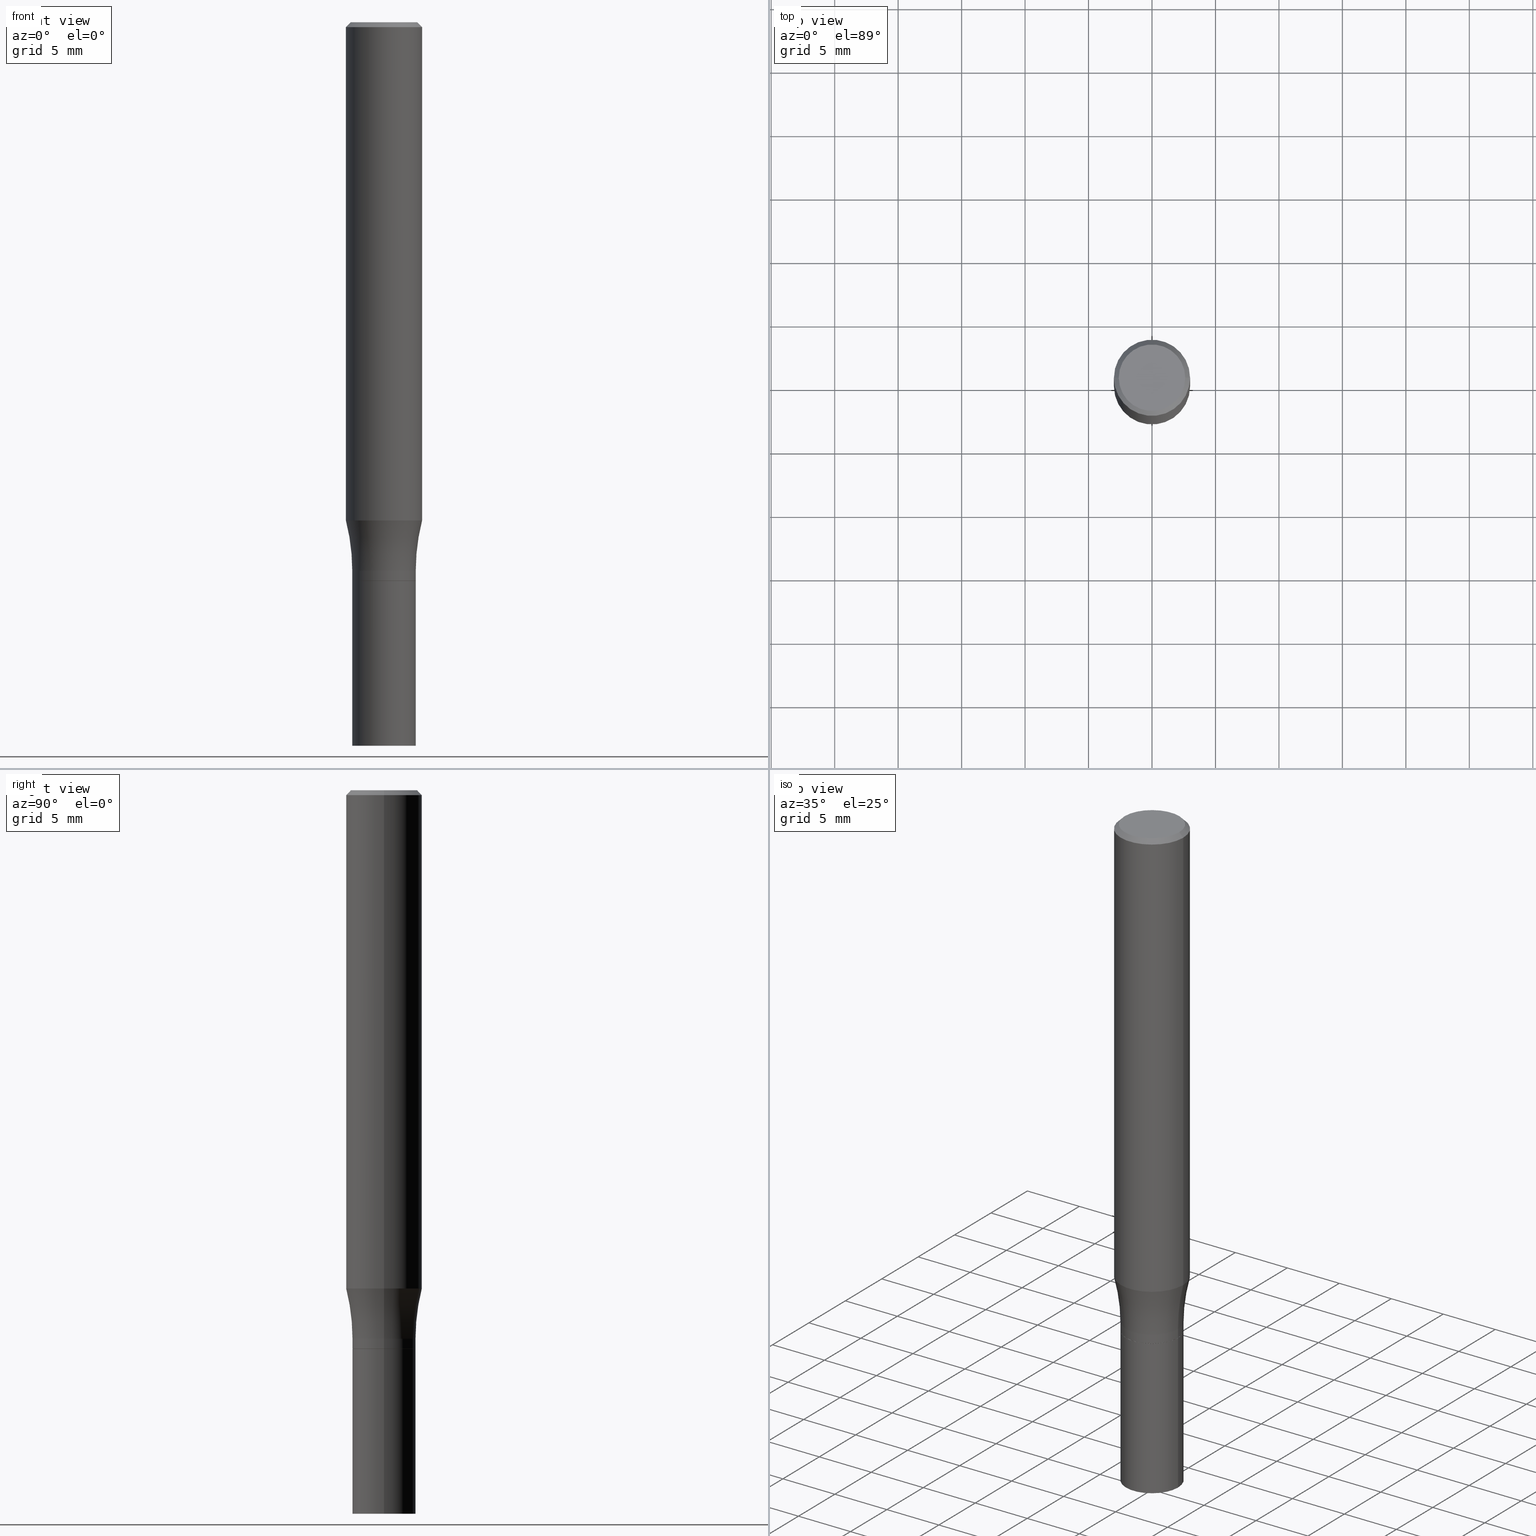
[diagram: canonical four-view strip — front | top / right | iso, engineering-drawing reading convention]
A machine part, canonical four-view strip (front | top / right | iso — engineering-drawing reading convention). The complete STEP part file that produces these views, byte-faithful:
ISO-10303-21;
HEADER;
FILE_DESCRIPTION (( 'STEP AP203' ),
    '1' );
FILE_NAME ('44514.STEP',
    '2024-03-04T15:28:48',
    ( '' ),
    ( '' ),
    'SwSTEP 2.0',
    'SolidWorks 2023',
    '' );
FILE_SCHEMA (( 'CONFIG_CONTROL_DESIGN' ));
ENDSEC;

DATA;
#1 = CC_DESIGN_PERSON_AND_ORGANIZATION_ASSIGNMENT ( #320, #254, ( #123 ) ) ;
#2 = DIRECTION ( 'NONE',  ( 0.000000000000000000, 0.000000000000000000, 1.000000000000000000 ) ) ;
#3 = SECURITY_CLASSIFICATION ( '', '', #408 ) ;
#4 =( NAMED_UNIT ( * ) PLANE_ANGLE_UNIT ( ) SI_UNIT ( $, .RADIAN. ) );
#5 = APPROVAL_ROLE ( '' ) ;
#6 = CARTESIAN_POINT ( 'NONE',  ( 4.236285612954512392E-29, -6.048293123277981078E-15, -1.732299999999999951 ) ) ;
#7 = ADVANCED_FACE ( 'NONE', ( #91 ), #183, .F. ) ;
#8 = VECTOR ( 'NONE', #30, 39.37007874015748143 ) ;
#9 = CC_DESIGN_PERSON_AND_ORGANIZATION_ASSIGNMENT ( #10, #74, ( #436 ) ) ;
#10 = PERSON_AND_ORGANIZATION ( #270, #120 ) ;
#11 = FACE_OUTER_BOUND ( 'NONE', #195, .T. ) ;
#12 = EDGE_LOOP ( 'NONE', ( #56, #40, #379, #128 ) ) ;
#13 = EDGE_LOOP ( 'NONE', ( #297, #447, #370, #80 ) ) ;
#14 = CARTESIAN_POINT ( 'NONE',  ( 0.000000000000000000, 0.000000000000000000, 0.000000000000000000 ) ) ;
#15 = EDGE_CURVE ( 'NONE', #75, #240, #97, .T. ) ;
#16 = VERTEX_POINT ( 'NONE', #301 ) ;
#17 = CARTESIAN_POINT ( 'NONE',  ( -0.1180999999999999966, 7.723156721521009862E-16, -0.01499999999999999944 ) ) ;
#18 = ORIENTED_EDGE ( 'NONE', *, *, #454, .F. ) ;
#19 = AXIS2_PLACEMENT_3D ( 'NONE', #172, #342, #430 ) ;
#20 = DIRECTION ( 'NONE',  ( 1.000000000000000000, -6.982962677686267499E-15, 4.876176775795936353E-29 ) ) ;
#21 = AXIS2_PLACEMENT_3D ( 'NONE', #6, #402, #150 ) ;
#22 = VERTEX_POINT ( 'NONE', #384 ) ;
#23 = CC_DESIGN_SECURITY_CLASSIFICATION ( #3, ( #436 ) ) ;
#24 = DIRECTION ( 'NONE',  ( 1.000000000000000000, -6.982962677686265133E-15, 0.000000000000000000 ) ) ;
#25 = CARTESIAN_POINT ( 'NONE',  ( 3.779747038470435747E-29, -5.396477034174070739E-15, -1.545612452267071113 ) ) ;
#26 = DIRECTION ( 'NONE',  ( -1.000000000000000000, 6.982962677686265922E-15, -4.876176775795935793E-29 ) ) ;
#27 = DIRECTION ( 'NONE',  ( 1.000000000000000000, -6.982962677686266711E-15, 4.876176775795935793E-29 ) ) ;
#28 = DIRECTION ( 'NONE',  ( 1.000000000000000000, -6.982962677686265922E-15, 4.876176775795935793E-29 ) ) ;
#29 = AXIS2_PLACEMENT_3D ( 'NONE', #259, #412, #329 ) ;
#30 = DIRECTION ( 'NONE',  ( -2.445468806185136877E-29, 3.491481338843145188E-15, 1.000000000000000000 ) ) ;
#31 = EDGE_CURVE ( 'NONE', #199, #386, #163, .T. ) ;
#32 = CARTESIAN_POINT ( 'NONE',  ( 3.779747038470435747E-29, -5.396477034174070739E-15, -1.545612452267071113 ) ) ;
#33 = DESIGN_CONTEXT ( 'detailed design', #393, 'design' ) ;
#34 = AXIS2_PLACEMENT_3D ( 'NONE', #369, #89, #299 ) ;
#35 = CALENDAR_DATE ( 2024, 4, 3 ) ;
#36 = EDGE_CURVE ( 'NONE', #199, #132, #378, .T. ) ;
#37 = EDGE_LOOP ( 'NONE', ( #372, #420, #333, #157 ) ) ;
#38 = CARTESIAN_POINT ( 'NONE',  ( 0.09795000000000000928, -6.732274317557352209E-15, -1.732300000000000173 ) ) ;
#39 = ADVANCED_FACE ( 'NONE', ( #127 ), #168, .T. ) ;
#40 = ORIENTED_EDGE ( 'NONE', *, *, #137, .T. ) ;
#41 = ORIENTED_EDGE ( 'NONE', *, *, #225, .F. ) ;
#42 = APPROVAL ( #111, 'UNSPECIFIED' ) ;
#43 = AXIS2_PLACEMENT_3D ( 'NONE', #231, #345, #455 ) ;
#44 = APPLICATION_PROTOCOL_DEFINITION ( 'international standard', 'config_control_design', 1994, #280 ) ;
#45 = AXIS2_PLACEMENT_3D ( 'NONE', #417, #449, #303 ) ;
#46 = CARTESIAN_POINT ( 'NONE',  ( 0.1031000000000000111, -7.849571885948555664E-16, -3.585672687244918133E-16 ) ) ;
#47 = DIRECTION ( 'NONE',  ( -2.445468806185136877E-29, 3.491481338843145188E-15, 1.000000000000000000 ) ) ;
#48 = DIRECTION ( 'NONE',  ( -2.438088387897960049E-29, 3.491481338843145188E-15, 1.000000000000000000 ) ) ;
#49 = LINE ( 'NONE', #124, #428 ) ;
#50 = EDGE_LOOP ( 'NONE', ( #416, #169 ) ) ;
#51 = LINE ( 'NONE', #332, #8 ) ;
#52 = AXIS2_PLACEMENT_3D ( 'NONE', #281, #100, #68 ) ;
#53 = ORIENTED_EDGE ( 'NONE', *, *, #362, .T. ) ;
#54 = DIRECTION ( 'NONE',  ( -2.445468806185136597E-29, 3.491481338843145583E-15, 1.000000000000000000 ) ) ;
#55 = ADVANCED_FACE ( 'NONE', ( #463 ), #94, .F. ) ;
#56 = ORIENTED_EDGE ( 'NONE', *, *, #404, .T. ) ;
#57 = CARTESIAN_POINT ( 'NONE',  ( -0.09795000000000000928, -5.352316513600964655E-15, -1.732300000000000173 ) ) ;
#58 = EDGE_LOOP ( 'NONE', ( #119, #295 ) ) ;
#59 = DIRECTION ( 'NONE',  ( -2.445468806185136597E-29, 3.491481338843145583E-15, 1.000000000000000000 ) ) ;
#60 = FACE_OUTER_BOUND ( 'NONE', #58, .T. ) ;
#61 = ORIENTED_EDGE ( 'NONE', *, *, #31, .F. ) ;
#62 = CIRCLE ( 'NONE', #251, 0.09845000000000000973 ) ;
#63 = LINE ( 'NONE', #278, #238 ) ;
#64 = CARTESIAN_POINT ( 'NONE',  ( 8.768650705847610599E-45, -1.251930927471537114E-30, -3.585672687244970888E-16 ) ) ;
#65 = ORIENTED_EDGE ( 'NONE', *, *, #286, .F. ) ;
#66 = LOCAL_TIME ( 10, 28, 48.00000000000000000, #153 ) ;
#67 = CARTESIAN_POINT ( 'NONE',  ( -0.1181000000000000105, 8.391509709326783943E-16, -5.809262341591044484E-30 ) ) ;
#68 = DIRECTION ( 'NONE',  ( 1.000000000000000000, -6.982962677686267499E-15, 4.876176775795936353E-29 ) ) ;
#69 = FACE_OUTER_BOUND ( 'NONE', #131, .T. ) ;
#70 = AXIS2_PLACEMENT_3D ( 'NONE', #337, #305, #20 ) ;
#71 = DIRECTION ( 'NONE',  ( -2.445468806185136877E-29, 3.491481338843145188E-15, 1.000000000000000000 ) ) ;
#72 = APPROVAL_DATE_TIME ( #140, #151 ) ;
#73 = CC_DESIGN_APPROVAL ( #151, ( #3 ) ) ;
#74 = PERSON_AND_ORGANIZATION_ROLE ( 'creator' ) ;
#75 = VERTEX_POINT ( 'NONE', #200 ) ;
#76 = AXIS2_PLACEMENT_3D ( 'NONE', #14, #83, #27 ) ;
#77 = CALENDAR_DATE ( 2024, 4, 3 ) ;
#78 = AXIS2_PLACEMENT_3D ( 'NONE', #309, #275, #388 ) ;
#79 = DIRECTION ( 'NONE',  ( -2.445468806185136597E-29, 3.491481338843145583E-15, 1.000000000000000000 ) ) ;
#80 = ORIENTED_EDGE ( 'NONE', *, *, #362, .F. ) ;
#81 = ORIENTED_EDGE ( 'NONE', *, *, #201, .F. ) ;
#82 = ADVANCED_FACE ( 'NONE', ( #375 ), #268, .T. ) ;
#83 = DIRECTION ( 'NONE',  ( -2.445468806185136597E-29, 3.491481338843145583E-15, 1.000000000000000000 ) ) ;
#84 = VECTOR ( 'NONE', #47, 39.37007874015748143 ) ;
#85 = VERTEX_POINT ( 'NONE', #424 ) ;
#86 = FACE_OUTER_BOUND ( 'NONE', #12, .T. ) ;
#87 = VERTEX_POINT ( 'NONE', #17 ) ;
#88 = FACE_OUTER_BOUND ( 'NONE', #419, .T. ) ;
#89 = DIRECTION ( 'NONE',  ( -2.445468806185136597E-29, 3.491481338843145583E-15, 1.000000000000000000 ) ) ;
#90 = EDGE_LOOP ( 'NONE', ( #458, #116, #326, #300 ) ) ;
#91 = FACE_OUTER_BOUND ( 'NONE', #37, .T. ) ;
#92 = ORIENTED_EDGE ( 'NONE', *, *, #358, .F. ) ;
#93 = AXIS2_PLACEMENT_3D ( 'NONE', #96, #306, #139 ) ;
#94 = PLANE ( 'NONE',  #283 ) ;
#95 = CARTESIAN_POINT ( 'NONE',  ( 3.668203209277705088E-31, -5.237222008264718399E-17, -0.01499999999999999944 ) ) ;
#96 = CARTESIAN_POINT ( 'NONE',  ( 4.236285612954512953E-29, -6.048293123277982656E-15, -1.732300000000000173 ) ) ;
#97 = CIRCLE ( 'NONE', #363, 0.1181000000000000383 ) ;
#98 = DIRECTION ( 'NONE',  ( -2.445468806185136597E-29, 3.491481338843145583E-15, 1.000000000000000000 ) ) ;
#99 = CONICAL_SURFACE ( 'NONE', #196, 0.1180999999999999966, 0.7853981633974600474 ) ;
#100 = DIRECTION ( 'NONE',  ( -2.445468806185136597E-29, 3.491481338843145583E-15, 1.000000000000000000 ) ) ;
#101 = EDGE_CURVE ( 'NONE', #186, #359, #216, .T. ) ;
#102 = DIRECTION ( 'NONE',  ( 1.000000000000000000, 0.000000000000000000, 0.000000000000000000 ) ) ;
#103 = DIRECTION ( 'NONE',  ( -2.445468806185136597E-29, 3.491481338843145583E-15, 1.000000000000000000 ) ) ;
#104 = COORDINATED_UNIVERSAL_TIME_OFFSET ( 5, 0, .BEHIND. ) ;
#105 = AXIS2_PLACEMENT_3D ( 'NONE', #310, #277, #28 ) ;
#106 = COORDINATED_UNIVERSAL_TIME_OFFSET ( 5, 0, .BEHIND. ) ;
#107 = CARTESIAN_POINT ( 'NONE',  ( 0.09845000000000017626, -6.626831581124290238E-15, -1.701100000000000056 ) ) ;
#108 = DIRECTION ( 'NONE',  ( -2.445468806185136877E-29, 3.491481338843145188E-15, 1.000000000000000000 ) ) ;
#109 = COORDINATED_UNIVERSAL_TIME_OFFSET ( 5, 0, .BEHIND. ) ;
#110 = ADVANCED_FACE ( 'NONE', ( #88 ), #135, .T. ) ;
#111 = APPROVAL_STATUS ( 'not_yet_approved' ) ;
#112 = CC_DESIGN_PERSON_AND_ORGANIZATION_ASSIGNMENT ( #291, #442, ( #3 ) ) ;
#113 = LINE ( 'NONE', #253, #360 ) ;
#114 = CARTESIAN_POINT ( 'NONE',  ( -0.7234500000000001485, -7.989374836496292640E-16, -1.701100000000000056 ) ) ;
#115 = AXIS2_PLACEMENT_3D ( 'NONE', #334, #160, #448 ) ;
#116 = ORIENTED_EDGE ( 'NONE', *, *, #413, .T. ) ;
#117 = FACE_OUTER_BOUND ( 'NONE', #209, .T. ) ;
#118 = LOCAL_TIME ( 10, 28, 48.00000000000000000, #348 ) ;
#119 = ORIENTED_EDGE ( 'NONE', *, *, #101, .F. ) ;
#120 = ORGANIZATION ( 'UNSPECIFIED', 'UNSPECIFIED', '' ) ;
#121 = VERTEX_POINT ( 'NONE', #122 ) ;
#122 = CARTESIAN_POINT ( 'NONE',  ( -0.09845000000000017626, -4.898577822695823688E-15, -1.701100000000000056 ) ) ;
#123 = PRODUCT ( '44514', '44514', '', ( #287 ) ) ;
#124 = CARTESIAN_POINT ( 'NONE',  ( 0.09795000000000000928, -6.732274317557352209E-15, -1.732300000000000173 ) ) ;
#125 = VECTOR ( 'NONE', #108, 39.37007874015748143 ) ;
#126 = ORIENTED_EDGE ( 'NONE', *, *, #454, .T. ) ;
#127 = FACE_OUTER_BOUND ( 'NONE', #423, .T. ) ;
#128 = ORIENTED_EDGE ( 'NONE', *, *, #450, .F. ) ;
#129 = DIRECTION ( 'NONE',  ( 1.000000000000000000, -6.982962677686269077E-15, 0.000000000000000000 ) ) ;
#130 = FACE_OUTER_BOUND ( 'NONE', #13, .T. ) ;
#131 = EDGE_LOOP ( 'NONE', ( #162, #226, #206, #227 ) ) ;
#132 = VERTEX_POINT ( 'NONE', #460 ) ;
#133 = CARTESIAN_POINT ( 'NONE',  ( 0.09845000000000000973, -6.735765798896194427E-15, -1.732299999999999951 ) ) ;
#134 = AXIS2_PLACEMENT_3D ( 'NONE', #461, #136, #392 ) ;
#135 = CYLINDRICAL_SURFACE ( 'NONE', #284, 0.09845000000000000973 ) ;
#136 = DIRECTION ( 'NONE',  ( -2.445468806185136597E-29, 3.491481338843145583E-15, 1.000000000000000000 ) ) ;
#137 = EDGE_CURVE ( 'NONE', #132, #121, #63, .T. ) ;
#138 = APPROVAL_PERSON_ORGANIZATION ( #328, #151, #459 ) ;
#139 = DIRECTION ( 'NONE',  ( 1.000000000000000000, -6.982962677686269077E-15, 0.000000000000000000 ) ) ;
#140 = DATE_AND_TIME ( #242, #118 ) ;
#141 = AXIS2_PLACEMENT_3D ( 'NONE', #349, #429, #129 ) ;
#142 = CARTESIAN_POINT ( 'NONE',  ( 7.199434520694541042E-16, 0.1031000000000000111, -5.392553603969768538E-16 ) ) ;
#143 = AXIS2_PLACEMENT_3D ( 'NONE', #155, #249, #399 ) ;
#144 = AXIS2_PLACEMENT_3D ( 'NONE', #406, #395, #322 ) ;
#145 = APPROVAL_DATE_TIME ( #441, #188 ) ;
#146 = ADVANCED_FACE ( 'NONE', ( #171 ), #223, .T. ) ;
#147 = DATE_TIME_ROLE ( 'creation_date' ) ;
#148 = CIRCLE ( 'NONE', #34, 0.09845000000000017626 ) ;
#149 = PERSON_AND_ORGANIZATION ( #270, #120 ) ;
#150 = DIRECTION ( 'NONE',  ( 1.000000000000000000, -6.982962677686265133E-15, 0.000000000000000000 ) ) ;
#151 = APPROVAL ( #308, 'UNSPECIFIED' ) ;
#152 = PERSON_AND_ORGANIZATION_ROLE ( 'design_supplier' ) ;
#153 = COORDINATED_UNIVERSAL_TIME_OFFSET ( 5, 0, .BEHIND. ) ;
#154 = CARTESIAN_POINT ( 'NONE',  ( -0.09845000000000000973, -6.242233874532123993E-15, -1.732299999999999951 ) ) ;
#155 = CARTESIAN_POINT ( 'NONE',  ( 3.668203209277705088E-31, -5.237222008264718399E-17, -0.01499999999999999944 ) ) ;
#156 = ORIENTED_EDGE ( 'NONE', *, *, #101, .T. ) ;
#157 = ORIENTED_EDGE ( 'NONE', *, *, #184, .T. ) ;
#158 = CARTESIAN_POINT ( 'NONE',  ( 0.7234500000000001485, -1.099118325467820614E-14, -1.701100000000000056 ) ) ;
#159 = PRODUCT_RELATED_PRODUCT_CATEGORY ( 'detail', '', ( #123 ) ) ;
#160 = DIRECTION ( 'NONE',  ( -2.445468806185136597E-29, 3.491481338843145583E-15, 1.000000000000000000 ) ) ;
#161 = CARTESIAN_POINT ( 'NONE',  ( 0.09845000000000000973, -8.522705948116114900E-15, -2.244099999999999984 ) ) ;
#162 = ORIENTED_EDGE ( 'NONE', *, *, #246, .T. ) ;
#163 = CIRCLE ( 'NONE', #141, 0.09795000000000000928 ) ;
#164 = CARTESIAN_POINT ( 'NONE',  ( 0.000000000000000000, 0.000000000000000000, 0.000000000000000000 ) ) ;
#165 = CARTESIAN_POINT ( 'NONE',  ( -0.09795000000000000928, -5.349667286426854243E-15, -1.732300000000000173 ) ) ;
#166 = AXIS2_PLACEMENT_3D ( 'NONE', #64, #98, #211 ) ;
#167 = ORIENTED_EDGE ( 'NONE', *, *, #176, .F. ) ;
#168 = CYLINDRICAL_SURFACE ( 'NONE', #76, 0.09844999999999991258 ) ;
#169 = ORIENTED_EDGE ( 'NONE', *, *, #272, .T. ) ;
#170 = CC_DESIGN_APPROVAL ( #188, ( #336 ) ) ;
#171 = FACE_OUTER_BOUND ( 'NONE', #217, .T. ) ;
#172 = CARTESIAN_POINT ( 'NONE',  ( 4.236285612954512953E-29, -6.048293123277982656E-15, -1.732300000000000173 ) ) ;
#173 = DIRECTION ( 'NONE',  ( 2.438088387897960049E-29, -3.491481338843145188E-15, -1.000000000000000000 ) ) ;
#174 = LINE ( 'NONE', #465, #321 ) ;
#175 = CIRCLE ( 'NONE', #391, 0.6250000000000000000 ) ;
#176 = EDGE_CURVE ( 'NONE', #75, #87, #265, .T. ) ;
#177 = CARTESIAN_POINT ( 'NONE',  ( 5.487876547960064752E-29, -7.835233272497902340E-15, -2.244099999999999984 ) ) ;
#178 = DIMENSIONAL_EXPONENTS ( 1.000000000000000000, 0.000000000000000000, 0.000000000000000000, 0.000000000000000000, 0.000000000000000000, 0.000000000000000000, 0.000000000000000000 ) ;
#179 = AXIS2_PLACEMENT_3D ( 'NONE', #32, #435, #390 ) ;
#180 = CC_DESIGN_PERSON_AND_ORGANIZATION_ASSIGNMENT ( #219, #152, ( #436 ) ) ;
#181 = AXIS2_PLACEMENT_3D ( 'NONE', #364, #2, #102 ) ;
#182 = EDGE_CURVE ( 'NONE', #197, #307, #62, .T. ) ;
#183 = TOROIDAL_SURFACE ( 'NONE', #43, 0.7234500000000001485, 0.6250000000000000000 ) ;
#184 = EDGE_CURVE ( 'NONE', #456, #121, #453, .T. ) ;
#185 = LINE ( 'NONE', #250, #84 ) ;
#186 = VERTEX_POINT ( 'NONE', #161 ) ;
#187 = DIRECTION ( 'NONE',  ( -1.000000000000000000, 7.105427357601001859E-15, 0.000000000000000000 ) ) ;
#188 = APPROVAL ( #257, 'UNSPECIFIED' ) ;
#189 = AXIS2_PLACEMENT_3D ( 'NONE', #177, #389, #239 ) ;
#190 = ORIENTED_EDGE ( 'NONE', *, *, #315, .F. ) ;
#191 = DIRECTION ( 'NONE',  ( 1.000000000000000000, -6.982962677686270655E-15, 0.000000000000000000 ) ) ;
#192 =( CONVERSION_BASED_UNIT ( 'INCH', #258 ) LENGTH_UNIT ( ) NAMED_UNIT ( #178 ) );
#193 = CYLINDRICAL_SURFACE ( 'NONE', #29, 0.09845000000000000973 ) ;
#194 = DIRECTION ( 'NONE',  ( 1.000000000000000000, -6.982962677686266711E-15, 4.876176775795935793E-29 ) ) ;
#195 = EDGE_LOOP ( 'NONE', ( #156, #267, #18, #427 ) ) ;
#196 = AXIS2_PLACEMENT_3D ( 'NONE', #95, #273, #355 ) ;
#197 = VERTEX_POINT ( 'NONE', #154 ) ;
#198 = DIRECTION ( 'NONE',  ( 1.000000000000000000, -6.982962677686265133E-15, 0.000000000000000000 ) ) ;
#199 = VERTEX_POINT ( 'NONE', #165 ) ;
#200 = CARTESIAN_POINT ( 'NONE',  ( -0.1181000000000000660, -4.557326063241392542E-15, -1.545612452267071113 ) ) ;
#201 = EDGE_CURVE ( 'NONE', #121, #456, #148, .T. ) ;
#202 = EDGE_LOOP ( 'NONE', ( #126, #274 ) ) ;
#203 = EDGE_LOOP ( 'NONE', ( #65, #61 ) ) ;
#204 = CIRCLE ( 'NONE', #229, 0.6250000000000000000 ) ;
#205 = PLANE ( 'NONE',  #105 ) ;
#206 = ORIENTED_EDGE ( 'NONE', *, *, #215, .F. ) ;
#207 = DIRECTION ( 'NONE',  ( -2.445468806185136877E-29, 3.491481338843145188E-15, 1.000000000000000000 ) ) ;
#208 = FACE_OUTER_BOUND ( 'NONE', #382, .T. ) ;
#209 = EDGE_LOOP ( 'NONE', ( #446, #269, #235, #409 ) ) ;
#210 = DIRECTION ( 'NONE',  ( -2.445468806185136877E-29, 3.491481338843145188E-15, 1.000000000000000000 ) ) ;
#211 = DIRECTION ( 'NONE',  ( 1.000000000000000000, -6.982962677686265922E-15, 4.883331232093008327E-29 ) ) ;
#212 = CLOSED_SHELL ( 'NONE', ( #262, #296, #146, #232, #282, #7, #39, #245, #407, #352, #440, #82 ) ) ;
#213 = CYLINDRICAL_SURFACE ( 'NONE', #52, 0.1181000000000000105 ) ;
#214 = CONICAL_SURFACE ( 'NONE', #93, 0.09795000000000000928, 0.7853981633969190357 ) ;
#215 = EDGE_CURVE ( 'NONE', #16, #87, #276, .T. ) ;
#216 = CIRCLE ( 'NONE', #244, 0.09845000000000000973 ) ;
#217 = EDGE_LOOP ( 'NONE', ( #330, #425, #304, #41 ) ) ;
#218 = LOCAL_TIME ( 10, 28, 48.00000000000000000, #109 ) ;
#219 = PERSON_AND_ORGANIZATION ( #270, #120 ) ;
#220 = DIRECTION ( 'NONE',  ( 1.000000000000000000, -6.982962677686265922E-15, 4.876176775795935793E-29 ) ) ;
#221 = APPLICATION_PROTOCOL_DEFINITION ( 'international standard', 'config_control_design', 1994, #393 ) ;
#222 = LINE ( 'NONE', #439, #125 ) ;
#223 = CONICAL_SURFACE ( 'NONE', #78, 0.09795000000000000928, 0.7853981633969190357 ) ;
#224 = DATE_AND_TIME ( #77, #66 ) ;
#225 = EDGE_CURVE ( 'NONE', #386, #85, #49, .T. ) ;
#226 = ORIENTED_EDGE ( 'NONE', *, *, #176, .T. ) ;
#227 = ORIENTED_EDGE ( 'NONE', *, *, #373, .F. ) ;
#228 = CARTESIAN_POINT ( 'NONE',  ( 4.236285612954512392E-29, -6.048293123277981078E-15, -1.732299999999999951 ) ) ;
#229 = AXIS2_PLACEMENT_3D ( 'NONE', #158, #452, #24 ) ;
#230 = VERTEX_POINT ( 'NONE', #46 ) ;
#231 = CARTESIAN_POINT ( 'NONE',  ( 4.159986986201535705E-29, -5.939358905506075311E-15, -1.701100000000000056 ) ) ;
#232 = ADVANCED_FACE ( 'NONE', ( #86 ), #443, .T. ) ;
#233 = ORIENTED_EDGE ( 'NONE', *, *, #215, .T. ) ;
#234 = DIRECTION ( 'NONE',  ( -2.445468806185136597E-29, 3.491481338843145583E-15, 1.000000000000000000 ) ) ;
#235 = ORIENTED_EDGE ( 'NONE', *, *, #358, .T. ) ;
#236 = EDGE_CURVE ( 'NONE', #186, #307, #51, .T. ) ;
#237 = DIRECTION ( 'NONE',  ( 1.000000000000000000, -6.982962677686265133E-15, 0.000000000000000000 ) ) ;
#238 = VECTOR ( 'NONE', #207, 39.37007874015748143 ) ;
#239 = DIRECTION ( 'NONE',  ( 1.000000000000000000, -6.982962677686265133E-15, 0.000000000000000000 ) ) ;
#240 = VERTEX_POINT ( 'NONE', #432 ) ;
#241 = DIRECTION ( 'NONE',  ( -1.000000000000000000, 6.982962677686265922E-15, -4.876176775795935793E-29 ) ) ;
#242 = CALENDAR_DATE ( 2024, 4, 3 ) ;
#243 = FACE_OUTER_BOUND ( 'NONE', #90, .T. ) ;
#244 = AXIS2_PLACEMENT_3D ( 'NONE', #457, #271, #237 ) ;
#245 = ADVANCED_FACE ( 'NONE', ( #130 ), #214, .T. ) ;
#246 = EDGE_CURVE ( 'NONE', #240, #75, #421, .T. ) ;
#247 = CC_DESIGN_DATE_AND_TIME_ASSIGNMENT ( #285, #147, ( #336 ) ) ;
#248 = CALENDAR_DATE ( 2024, 4, 3 ) ;
#249 = DIRECTION ( 'NONE',  ( -2.445468806185136597E-29, 3.491481338843145583E-15, 1.000000000000000000 ) ) ;
#250 = CARTESIAN_POINT ( 'NONE',  ( 0.09844999999999991258, -6.874726756182123629E-16, 4.800596035771094310E-30 ) ) ;
#251 = AXIS2_PLACEMENT_3D ( 'NONE', #228, #54, #198 ) ;
#252 = DATE_AND_TIME ( #248, #415 ) ;
#253 = CARTESIAN_POINT ( 'NONE',  ( 0.1180999999999999966, -8.625970336194650129E-16, -0.01499999999999999944 ) ) ;
#254 = PERSON_AND_ORGANIZATION_ROLE ( 'design_owner' ) ;
#255 = CARTESIAN_POINT ( 'NONE',  ( 3.668203209277705088E-31, -5.237222008264718399E-17, -0.01499999999999999944 ) ) ;
#256 = APPROVAL_PERSON_ORGANIZATION ( #149, #188, #5 ) ;
#257 = APPROVAL_STATUS ( 'not_yet_approved' ) ;
#258 = LENGTH_MEASURE_WITH_UNIT ( LENGTH_MEASURE( 0.02539999999999999897 ), #324 );
#259 = CARTESIAN_POINT ( 'NONE',  ( 0.000000000000000000, 0.000000000000000000, 0.000000000000000000 ) ) ;
#260 = VECTOR ( 'NONE', #210, 39.37007874015748143 ) ;
#261 = ORIENTED_EDGE ( 'NONE', *, *, #431, .F. ) ;
#262 = ADVANCED_FACE ( 'NONE', ( #69 ), #213, .T. ) ;
#263 = CLOSED_SHELL ( 'NONE', ( #418, #354, #110, #55 ) ) ;
#264 = ORIENTED_EDGE ( 'NONE', *, *, #272, .F. ) ;
#265 = LINE ( 'NONE', #67, #260 ) ;
#266 = AXIS2_PLACEMENT_3D ( 'NONE', #142, #381, #26 ) ;
#267 = ORIENTED_EDGE ( 'NONE', *, *, #315, .T. ) ;
#268 = CYLINDRICAL_SURFACE ( 'NONE', #70, 0.1181000000000000105 ) ;
#269 = ORIENTED_EDGE ( 'NONE', *, *, #351, .F. ) ;
#270 = PERSON ( 'UNSPECIFIED', 'UNSPECIFIED', 'UNSPECIFIED', ('UNSPECIFIED'), ('UNSPECIFIED'), ('UNSPECIFIED') ) ;
#271 = DIRECTION ( 'NONE',  ( -2.445468806185136597E-29, 3.491481338843145583E-15, 1.000000000000000000 ) ) ;
#272 = EDGE_CURVE ( 'NONE', #230, #22, #331, .T. ) ;
#273 = DIRECTION ( 'NONE',  ( 2.445468806185136597E-29, -3.491481338843145583E-15, -1.000000000000000000 ) ) ;
#274 = ORIENTED_EDGE ( 'NONE', *, *, #182, .T. ) ;
#275 = DIRECTION ( 'NONE',  ( -2.445468806185136597E-29, 3.491481338843145583E-15, 1.000000000000000000 ) ) ;
#276 = CIRCLE ( 'NONE', #45, 0.1180999999999999966 ) ;
#277 = DIRECTION ( 'NONE',  ( -2.438088387897960049E-29, 3.491481338843145188E-15, 1.000000000000000000 ) ) ;
#278 = CARTESIAN_POINT ( 'NONE',  ( -0.09844999999999991258, 6.995293233558180118E-16, -4.842691596355949838E-30 ) ) ;
#279 = DIRECTION ( 'NONE',  ( -0.7071067811865557884, 2.468850131082343835E-15, -0.7071067811865392461 ) ) ;
#280 = APPLICATION_CONTEXT ( 'configuration controlled 3d designs of mechanical parts and assemblies' ) ;
#281 = CARTESIAN_POINT ( 'NONE',  ( 0.000000000000000000, 0.000000000000000000, 0.000000000000000000 ) ) ;
#282 = ADVANCED_FACE ( 'NONE', ( #243 ), #318, .F. ) ;
#283 = AXIS2_PLACEMENT_3D ( 'NONE', #380, #173, #241 ) ;
#284 = AXIS2_PLACEMENT_3D ( 'NONE', #164, #59, #426 ) ;
#285 = DATE_AND_TIME ( #35, #218 ) ;
#286 = EDGE_CURVE ( 'NONE', #386, #199, #302, .T. ) ;
#287 = MECHANICAL_CONTEXT ( 'NONE', #280, 'mechanical' ) ;
#288 = PERSON_AND_ORGANIZATION ( #270, #120 ) ;
#289 = CALENDAR_DATE ( 2024, 4, 3 ) ;
#290 = DIRECTION ( 'NONE',  ( 0.7071067811865557884, -7.319954787623282867E-15, -0.7071067811865392461 ) ) ;
#291 = PERSON_AND_ORGANIZATION ( #270, #120 ) ;
#292 = LOCAL_TIME ( 10, 28, 48.00000000000000000, #104 ) ;
#293 = CARTESIAN_POINT ( 'NONE',  ( 4.236285612954512392E-29, -6.048293123277981078E-15, -1.732299999999999951 ) ) ;
#294 = AXIS2_PLACEMENT_3D ( 'NONE', #414, #79, #194 ) ;
#295 = ORIENTED_EDGE ( 'NONE', *, *, #313, .F. ) ;
#296 = ADVANCED_FACE ( 'NONE', ( #208 ), #99, .T. ) ;
#297 = ORIENTED_EDGE ( 'NONE', *, *, #36, .F. ) ;
#298 = DIRECTION ( 'NONE',  ( 1.000000000000000000, -6.982962677686262766E-15, 0.000000000000000000 ) ) ;
#299 = DIRECTION ( 'NONE',  ( 1.000000000000000000, -6.982962677686272233E-15, 0.000000000000000000 ) ) ;
#300 = ORIENTED_EDGE ( 'NONE', *, *, #437, .F. ) ;
#301 = CARTESIAN_POINT ( 'NONE',  ( 0.1180999999999999966, -8.625970336194650129E-16, -0.01499999999999999944 ) ) ;
#302 = CIRCLE ( 'NONE', #19, 0.09795000000000000928 ) ;
#303 = DIRECTION ( 'NONE',  ( 1.000000000000000000, -6.982962677686266711E-15, 0.000000000000000000 ) ) ;
#304 = ORIENTED_EDGE ( 'NONE', *, *, #404, .F. ) ;
#305 = DIRECTION ( 'NONE',  ( -2.445468806185136597E-29, 3.491481338843145583E-15, 1.000000000000000000 ) ) ;
#306 = DIRECTION ( 'NONE',  ( -2.445468806185136597E-29, 3.491481338843145583E-15, 1.000000000000000000 ) ) ;
#307 = VERTEX_POINT ( 'NONE', #133 ) ;
#308 = APPROVAL_STATUS ( 'not_yet_approved' ) ;
#309 = CARTESIAN_POINT ( 'NONE',  ( 4.236285612954512953E-29, -6.048293123277982656E-15, -1.732300000000000173 ) ) ;
#310 = CARTESIAN_POINT ( 'NONE',  ( 5.494133482115100019E-29, -7.826272986665316453E-15, -2.244099999999999984 ) ) ;
#311 = ORIENTED_EDGE ( 'NONE', *, *, #450, .T. ) ;
#312 = CIRCLE ( 'NONE', #341, 0.1031000000000000111 ) ;
#313 = EDGE_CURVE ( 'NONE', #359, #186, #462, .T. ) ;
#314 = CARTESIAN_POINT ( 'NONE',  ( -0.09845000000000000973, 6.995293233558187021E-16, -4.842691596355954742E-30 ) ) ;
#315 = EDGE_CURVE ( 'NONE', #359, #197, #317, .T. ) ;
#316 =( GEOMETRIC_REPRESENTATION_CONTEXT ( 3 ) GLOBAL_UNCERTAINTY_ASSIGNED_CONTEXT ( ( #387 ) ) GLOBAL_UNIT_ASSIGNED_CONTEXT ( ( #192, #4, #397 ) ) REPRESENTATION_CONTEXT ( 'NONE', 'WORKASPACE' ) );
#317 = LINE ( 'NONE', #314, #366 ) ;
#318 = TOROIDAL_SURFACE ( 'NONE', #134, 0.7234500000000001485, 0.6250000000000000000 ) ;
#319 = PERSON_AND_ORGANIZATION_ROLE ( 'creator' ) ;
#320 = PERSON_AND_ORGANIZATION ( #270, #120 ) ;
#321 = VECTOR ( 'NONE', #279, 39.37007874015748143 ) ;
#322 = DIRECTION ( 'NONE',  ( 1.000000000000000000, -6.982962677686270655E-15, 0.000000000000000000 ) ) ;
#323 = PERSON_AND_ORGANIZATION ( #270, #120 ) ;
#324 =( LENGTH_UNIT ( ) NAMED_UNIT ( * ) SI_UNIT ( $, .METRE. ) );
#325 = CC_DESIGN_APPROVAL ( #42, ( #436 ) ) ;
#326 = ORIENTED_EDGE ( 'NONE', *, *, #201, .T. ) ;
#327 = FACE_OUTER_BOUND ( 'NONE', #203, .T. ) ;
#328 = PERSON_AND_ORGANIZATION ( #270, #120 ) ;
#329 = DIRECTION ( 'NONE',  ( 1.000000000000000000, -6.982962677686266711E-15, 4.876176775795935793E-29 ) ) ;
#330 = ORIENTED_EDGE ( 'NONE', *, *, #286, .T. ) ;
#331 = CIRCLE ( 'NONE', #166, 0.1031000000000000111 ) ;
#332 = CARTESIAN_POINT ( 'NONE',  ( 0.09845000000000000973, -6.874726756182130531E-16, 4.800596035771099214E-30 ) ) ;
#333 = ORIENTED_EDGE ( 'NONE', *, *, #437, .T. ) ;
#334 = CARTESIAN_POINT ( 'NONE',  ( 4.159986986201535705E-29, -5.939358905506075311E-15, -1.701100000000000056 ) ) ;
#335 = ORIENTED_EDGE ( 'NONE', *, *, #313, .T. ) ;
#336 = PRODUCT_DEFINITION ( 'UNKNOWN', '', #436, #33 ) ;
#337 = CARTESIAN_POINT ( 'NONE',  ( 0.000000000000000000, 0.000000000000000000, 0.000000000000000000 ) ) ;
#338 = ORIENTED_EDGE ( 'NONE', *, *, #464, .T. ) ;
#339 = CIRCLE ( 'NONE', #143, 0.1180999999999999966 ) ;
#340 = DIRECTION ( 'NONE',  ( -0.7071067811861732055, 7.493145998869000475E-15, 0.7071067811869217179 ) ) ;
#341 = AXIS2_PLACEMENT_3D ( 'NONE', #385, #346, #357 ) ;
#342 = DIRECTION ( 'NONE',  ( -2.445468806185136597E-29, 3.491481338843145583E-15, 1.000000000000000000 ) ) ;
#343 = ORIENTED_EDGE ( 'NONE', *, *, #137, .F. ) ;
#344 = APPROVAL_PERSON_ORGANIZATION ( #288, #42, #438 ) ;
#345 = DIRECTION ( 'NONE',  ( -2.445468806185136597E-29, 3.491481338843145583E-15, 1.000000000000000000 ) ) ;
#346 = DIRECTION ( 'NONE',  ( -2.445468806185136597E-29, 3.491481338843145583E-15, 1.000000000000000000 ) ) ;
#347 = ORIENTED_EDGE ( 'NONE', *, *, #373, .T. ) ;
#348 = COORDINATED_UNIVERSAL_TIME_OFFSET ( 5, 0, .BEHIND. ) ;
#349 = CARTESIAN_POINT ( 'NONE',  ( 4.236285612954512953E-29, -6.048293123277982656E-15, -1.732300000000000173 ) ) ;
#350 = FACE_OUTER_BOUND ( 'NONE', #50, .T. ) ;
#351 = EDGE_CURVE ( 'NONE', #22, #230, #312, .T. ) ;
#352 = ADVANCED_FACE ( 'NONE', ( #350 ), #468, .F. ) ;
#353 = CONICAL_SURFACE ( 'NONE', #356, 0.1180999999999999966, 0.7853981633974600474 ) ;
#354 = ADVANCED_FACE ( 'NONE', ( #60 ), #205, .F. ) ;
#355 = DIRECTION ( 'NONE',  ( -1.000000000000000000, 6.982962677686266711E-15, 0.000000000000000000 ) ) ;
#356 = AXIS2_PLACEMENT_3D ( 'NONE', #255, #365, #398 ) ;
#357 = DIRECTION ( 'NONE',  ( 1.000000000000000000, -6.982962677686265922E-15, 4.883331232093008327E-29 ) ) ;
#358 = EDGE_CURVE ( 'NONE', #22, #87, #174, .T. ) ;
#359 = VERTEX_POINT ( 'NONE', #445 ) ;
#360 = VECTOR ( 'NONE', #290, 39.37007874015748143 ) ;
#361 = DIRECTION ( 'NONE',  ( 7.105427357601001859E-15, 1.000000000000000000, -3.491481338843145583E-15 ) ) ;
#362 = EDGE_CURVE ( 'NONE', #132, #85, #434, .T. ) ;
#363 = AXIS2_PLACEMENT_3D ( 'NONE', #25, #234, #298 ) ;
#364 = CARTESIAN_POINT ( 'NONE',  ( 0.000000000000000000, 0.000000000000000000, 0.000000000000000000 ) ) ;
#365 = DIRECTION ( 'NONE',  ( 2.445468806185136597E-29, -3.491481338843145583E-15, -1.000000000000000000 ) ) ;
#366 = VECTOR ( 'NONE', #71, 39.37007874015748143 ) ;
#367 = DATE_TIME_ROLE ( 'classification_date' ) ;
#368 = PLANE ( 'NONE',  #383 ) ;
#369 = CARTESIAN_POINT ( 'NONE',  ( 4.159986986201535705E-29, -5.939358905506075311E-15, -1.701100000000000056 ) ) ;
#370 = ORIENTED_EDGE ( 'NONE', *, *, #225, .T. ) ;
#371 = DIRECTION ( 'NONE',  ( 0.7071067811861732055, -2.468850131078336422E-15, 0.7071067811869217179 ) ) ;
#372 = ORIENTED_EDGE ( 'NONE', *, *, #413, .F. ) ;
#373 = EDGE_CURVE ( 'NONE', #240, #16, #222, .T. ) ;
#374 = AXIS2_PLACEMENT_3D ( 'NONE', #405, #103, #191 ) ;
#375 = FACE_OUTER_BOUND ( 'NONE', #422, .T. ) ;
#376 = CC_DESIGN_DATE_AND_TIME_ASSIGNMENT ( #224, #367, ( #3 ) ) ;
#377 = ORIENTED_EDGE ( 'NONE', *, *, #15, .T. ) ;
#378 = LINE ( 'NONE', #57, #433 ) ;
#379 = ORIENTED_EDGE ( 'NONE', *, *, #184, .F. ) ;
#380 = CARTESIAN_POINT ( 'NONE',  ( 6.874726756182552572E-16, 0.09844999999999397289, -1.732300000000000173 ) ) ;
#381 = DIRECTION ( 'NONE',  ( 2.438088387897960049E-29, -3.491481338843145188E-15, -1.000000000000000000 ) ) ;
#382 = EDGE_LOOP ( 'NONE', ( #264, #338, #233, #92 ) ) ;
#383 = AXIS2_PLACEMENT_3D ( 'NONE', #293, #48, #220 ) ;
#384 = CARTESIAN_POINT ( 'NONE',  ( -0.1031000000000000111, 7.461295621107768549E-16, -3.585672687245022657E-16 ) ) ;
#385 = CARTESIAN_POINT ( 'NONE',  ( 8.768650705847610599E-45, -1.251930927471537114E-30, -3.585672687244970888E-16 ) ) ;
#386 = VERTEX_POINT ( 'NONE', #38 ) ;
#387 = UNCERTAINTY_MEASURE_WITH_UNIT (LENGTH_MEASURE( 1.000000000000000082E-05 ), #192, 'distance_accuracy_value', 'NONE');
#388 = DIRECTION ( 'NONE',  ( 1.000000000000000000, -6.982962677686269077E-15, 0.000000000000000000 ) ) ;
#389 = DIRECTION ( 'NONE',  ( -2.445468806185136597E-29, 3.491481338843145583E-15, 1.000000000000000000 ) ) ;
#390 = DIRECTION ( 'NONE',  ( 1.000000000000000000, -6.982962677686262766E-15, 0.000000000000000000 ) ) ;
#391 = AXIS2_PLACEMENT_3D ( 'NONE', #114, #361, #187 ) ;
#392 = DIRECTION ( 'NONE',  ( 1.000000000000000000, -6.982962677686266711E-15, 4.883557194083112901E-29 ) ) ;
#393 = APPLICATION_CONTEXT ( 'configuration controlled 3d designs of mechanical parts and assemblies' ) ;
#394 = MANIFOLD_SOLID_BREP ( 'Body-Move/Copy2[2]', #212 ) ;
#395 = DIRECTION ( 'NONE',  ( -2.445468806185136597E-29, 3.491481338843145583E-15, 1.000000000000000000 ) ) ;
#396 = MANIFOLD_SOLID_BREP ( 'Body-Move/Copy2[1]', #263 ) ;
#397 =( NAMED_UNIT ( * ) SI_UNIT ( $, .STERADIAN. ) SOLID_ANGLE_UNIT ( ) );
#398 = DIRECTION ( 'NONE',  ( -1.000000000000000000, 6.982962677686266711E-15, 0.000000000000000000 ) ) ;
#399 = DIRECTION ( 'NONE',  ( 1.000000000000000000, -6.982962677686266711E-15, 0.000000000000000000 ) ) ;
#400 = PRODUCT_DEFINITION_SHAPE ( 'NONE', 'NONE',  #336 ) ;
#401 = SHAPE_DEFINITION_REPRESENTATION ( #400, #410 ) ;
#402 = DIRECTION ( 'NONE',  ( -2.445468806185136597E-29, 3.491481338843145583E-15, 1.000000000000000000 ) ) ;
#403 = APPROVAL_DATE_TIME ( #252, #42 ) ;
#404 = EDGE_CURVE ( 'NONE', #85, #132, #411, .T. ) ;
#405 = CARTESIAN_POINT ( 'NONE',  ( 4.235062878551419591E-29, -6.046547382608559574E-15, -1.731800000000000006 ) ) ;
#406 = CARTESIAN_POINT ( 'NONE',  ( 4.235062878551419591E-29, -6.046547382608559574E-15, -1.731800000000000006 ) ) ;
#407 = ADVANCED_FACE ( 'NONE', ( #327 ), #368, .F. ) ;
#408 = SECURITY_CLASSIFICATION_LEVEL ( 'unclassified' ) ;
#409 = ORIENTED_EDGE ( 'NONE', *, *, #431, .T. ) ;
#410 = ADVANCED_BREP_SHAPE_REPRESENTATION ( '44514', ( #396, #394, #181 ), #316 ) ;
#411 = CIRCLE ( 'NONE', #374, 0.09844999999999964890 ) ;
#412 = DIRECTION ( 'NONE',  ( -2.445468806185136597E-29, 3.491481338843145583E-15, 1.000000000000000000 ) ) ;
#413 = EDGE_CURVE ( 'NONE', #75, #121, #175, .T. ) ;
#414 = CARTESIAN_POINT ( 'NONE',  ( 0.000000000000000000, 0.000000000000000000, 0.000000000000000000 ) ) ;
#415 = LOCAL_TIME ( 10, 28, 48.00000000000000000, #106 ) ;
#416 = ORIENTED_EDGE ( 'NONE', *, *, #351, .T. ) ;
#417 = CARTESIAN_POINT ( 'NONE',  ( 3.668203209277705088E-31, -5.237222008264718399E-17, -0.01499999999999999944 ) ) ;
#418 = ADVANCED_FACE ( 'NONE', ( #11 ), #193, .T. ) ;
#419 = EDGE_LOOP ( 'NONE', ( #190, #335, #451, #444 ) ) ;
#420 = ORIENTED_EDGE ( 'NONE', *, *, #246, .F. ) ;
#421 = CIRCLE ( 'NONE', #179, 0.1181000000000000383 ) ;
#422 = EDGE_LOOP ( 'NONE', ( #167, #377, #347, #261 ) ) ;
#423 = EDGE_LOOP ( 'NONE', ( #343, #53, #311, #81 ) ) ;
#424 = CARTESIAN_POINT ( 'NONE',  ( 0.09844999999999964890, -6.734020058226770557E-15, -1.731800000000000006 ) ) ;
#425 = ORIENTED_EDGE ( 'NONE', *, *, #36, .T. ) ;
#426 = DIRECTION ( 'NONE',  ( 1.000000000000000000, -6.982962677686266711E-15, 4.876176775795935793E-29 ) ) ;
#427 = ORIENTED_EDGE ( 'NONE', *, *, #236, .F. ) ;
#428 = VECTOR ( 'NONE', #371, 39.37007874015748854 ) ;
#429 = DIRECTION ( 'NONE',  ( -2.445468806185136597E-29, 3.491481338843145583E-15, 1.000000000000000000 ) ) ;
#430 = DIRECTION ( 'NONE',  ( 1.000000000000000000, -6.982962677686269077E-15, 0.000000000000000000 ) ) ;
#431 = EDGE_CURVE ( 'NONE', #87, #16, #339, .T. ) ;
#432 = CARTESIAN_POINT ( 'NONE',  ( 0.1181000000000000660, -6.221164926408819001E-15, -1.545612452267071113 ) ) ;
#433 = VECTOR ( 'NONE', #340, 39.37007874015748854 ) ;
#434 = CIRCLE ( 'NONE', #144, 0.09844999999999964890 ) ;
#435 = DIRECTION ( 'NONE',  ( -2.445468806185136597E-29, 3.491481338843145583E-15, 1.000000000000000000 ) ) ;
#436 = PRODUCT_DEFINITION_FORMATION_WITH_SPECIFIED_SOURCE ( 'ANY', '', #123, .NOT_KNOWN. ) ;
#437 = EDGE_CURVE ( 'NONE', #240, #456, #204, .T. ) ;
#438 = APPROVAL_ROLE ( '' ) ;
#439 = CARTESIAN_POINT ( 'NONE',  ( 0.1181000000000000105, -8.246878922347482626E-16, 5.758764772215001141E-30 ) ) ;
#440 = ADVANCED_FACE ( 'NONE', ( #117 ), #353, .T. ) ;
#441 = DATE_AND_TIME ( #289, #292 ) ;
#442 = PERSON_AND_ORGANIZATION_ROLE ( 'classification_officer' ) ;
#443 = CYLINDRICAL_SURFACE ( 'NONE', #294, 0.09844999999999991258 ) ;
#444 = ORIENTED_EDGE ( 'NONE', *, *, #182, .F. ) ;
#445 = CARTESIAN_POINT ( 'NONE',  ( -0.09845000000000000973, -6.242233874532123993E-15, -2.244099999999999984 ) ) ;
#446 = ORIENTED_EDGE ( 'NONE', *, *, #464, .F. ) ;
#447 = ORIENTED_EDGE ( 'NONE', *, *, #31, .T. ) ;
#448 = DIRECTION ( 'NONE',  ( 1.000000000000000000, -6.982962677686272233E-15, 0.000000000000000000 ) ) ;
#449 = DIRECTION ( 'NONE',  ( -2.445468806185136597E-29, 3.491481338843145583E-15, 1.000000000000000000 ) ) ;
#450 = EDGE_CURVE ( 'NONE', #85, #456, #185, .T. ) ;
#451 = ORIENTED_EDGE ( 'NONE', *, *, #236, .T. ) ;
#452 = DIRECTION ( 'NONE',  ( -6.982962677686266711E-15, -1.000000000000000000, 3.491481338843145583E-15 ) ) ;
#453 = CIRCLE ( 'NONE', #115, 0.09845000000000017626 ) ;
#454 = EDGE_CURVE ( 'NONE', #307, #197, #466, .T. ) ;
#455 = DIRECTION ( 'NONE',  ( 1.000000000000000000, -6.982962677686266711E-15, 4.883557194083112901E-29 ) ) ;
#456 = VERTEX_POINT ( 'NONE', #107 ) ;
#457 = CARTESIAN_POINT ( 'NONE',  ( 5.487876547960064752E-29, -7.835233272497902340E-15, -2.244099999999999984 ) ) ;
#458 = ORIENTED_EDGE ( 'NONE', *, *, #15, .F. ) ;
#459 = APPROVAL_ROLE ( '' ) ;
#460 = CARTESIAN_POINT ( 'NONE',  ( -0.09844999999999964890, -5.293423820701500121E-15, -1.731800000000000006 ) ) ;
#461 = CARTESIAN_POINT ( 'NONE',  ( 4.159986986201535705E-29, -5.939358905506075311E-15, -1.701100000000000056 ) ) ;
#462 = CIRCLE ( 'NONE', #189, 0.09845000000000000973 ) ;
#463 = FACE_OUTER_BOUND ( 'NONE', #202, .T. ) ;
#464 = EDGE_CURVE ( 'NONE', #230, #16, #113, .T. ) ;
#465 = CARTESIAN_POINT ( 'NONE',  ( -0.1180999999999999966, 7.723156721521009862E-16, -0.01499999999999999944 ) ) ;
#466 = CIRCLE ( 'NONE', #21, 0.09845000000000000973 ) ;
#467 = CC_DESIGN_PERSON_AND_ORGANIZATION_ASSIGNMENT ( #323, #319, ( #336 ) ) ;
#468 = PLANE ( 'NONE',  #266 ) ;
ENDSEC;
END-ISO-10303-21;
